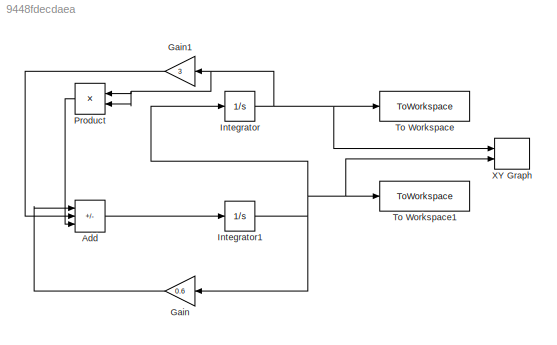
MODEL slx_9448fdecdaea
KIND model
CONFIG AbsTol = auto
CONFIG EnableMultiTasking = off
CONFIG FixedStep = auto
CONFIG MaxStep = auto
CONFIG MinStep = auto
CONFIG RelTol = 1e-3
CONFIG SampleTimeConstraint = Unconstrained
CONFIG SolverName = VariableStepAuto
CONFIG StartTime = 0.0
CONFIG StopTime = 10.0
BLOCK [Sum] Add
  IconShape = rectangular
  Inputs = ---
  Ports = [3, 1]
BLOCK [Gain] Gain
  Gain = 0.6
  NameLocation = top
BLOCK [Gain] Gain1
  Gain = 3
  NameLocation = top
BLOCK [Integrator] Integrator
  InitialCondition = -4
  LimitOutput = on
  LowerSaturationLimit = -12
  Ports = [1, 1]
  UpperSaturationLimit = 12
BLOCK [Integrator] Integrator1
  InitialCondition = 1
  LimitOutput = on
  LowerSaturationLimit = -12
  Ports = [1, 1]
  UpperSaturationLimit = 12
BLOCK [Product] Product
  NameLocation = top
  Ports = [2, 1]
BLOCK [ToWorkspace] To Workspace
  FixptAsFi = on
  MaxDataPoints = inf
  Ports = [1]
  SampleTime = -1
  SaveFormat = Timeseries
  VariableName = x
BLOCK [ToWorkspace] To Workspace1
  FixptAsFi = on
  MaxDataPoints = inf
  Ports = [1]
  SampleTime = -1
  SaveFormat = Timeseries
  VariableName = y
BLOCK [Record] XY Graph
  CompatibilityTag = XY
  FileSettingsInternal = {"entries":[{"content":{"excelSettings":{"content":{},"type":"Streamout.ExcelSettings"}},"type":"Streamout.FileSettingStorage","uuid":"46ca6a8e-a67a-4a63-81d4-74d655ba9dc1"}],"packageUris":["http://schema.mathworks.com/mf0/streamout_blocks/R2020a"],"version":"1.0"}
  Layout = [1 1]
  Ports = [2]
  SignalsInternal = {"entries":[{"content":{"signals":[{"content":{"blockPath":["SIMULINK_MODEL/XY Graph"],"channel":[],"dimensions":[1],"domain":"SIMULINK_MODEL/XY Graph","lineColor":"#a2142f","plots":[1],"port":1,"sid":[""],"signalID":192,"signalName":"Integrator"},"type":"RecordBlkView.Signal","uuid":"72aafa9a-5f44-4573-92f9-64460758b16e"},{"content":{"blockPath":["SIMULINK_MODEL/XY Graph"],"channel":[],"dimension...<+392ch>
  VisualizationBindings = {"xyplotplugin":{"info":[{"series":[{"bindingParametersList":[{"parameter":"X-Axis","signalID":192,"signalName":"Integrator"},{"parameter":"Y-Axis","signalID":196,"signalName":"Integrator1"}],"seriesID":29358}],"subplotID":1}]}}
LINE Add:1 -> Integrator1:1
LINE Gain1:1 -> Add:2
LINE Gain:1 -> Add:1
NET Integrator1:1 -> Gain:1, Integrator:1, To Workspace1:1, XY Graph:2
NET Integrator:1 -> Gain1:1, Product:1, Product:2, To Workspace:1, XY Graph:1
LINE Product:1 -> Add:3
note: NET lines group one-source signal fan-out (src -> all destinations, sorted); 1:1 wires keep LINE
